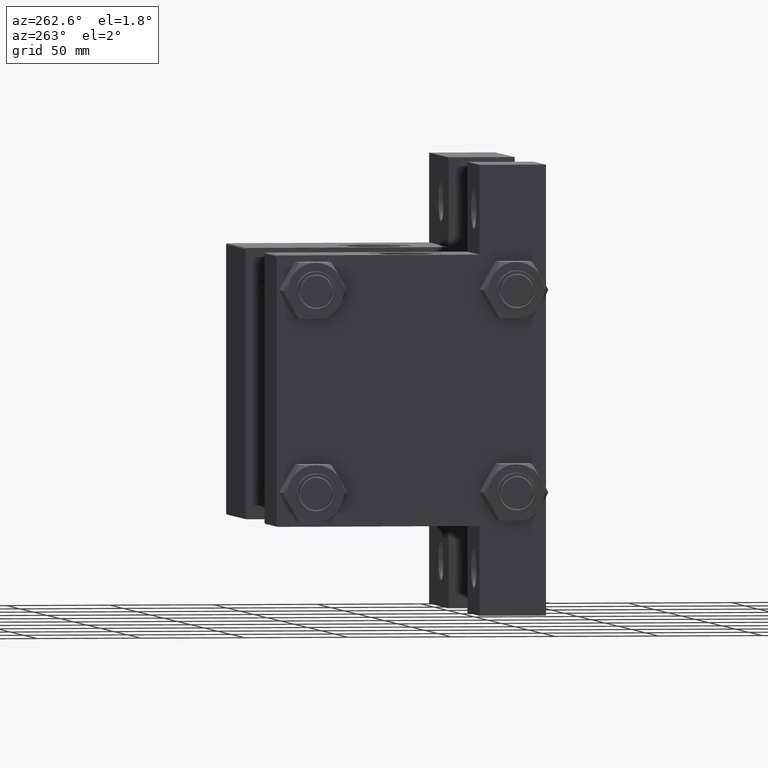
[diagram: clean part render]
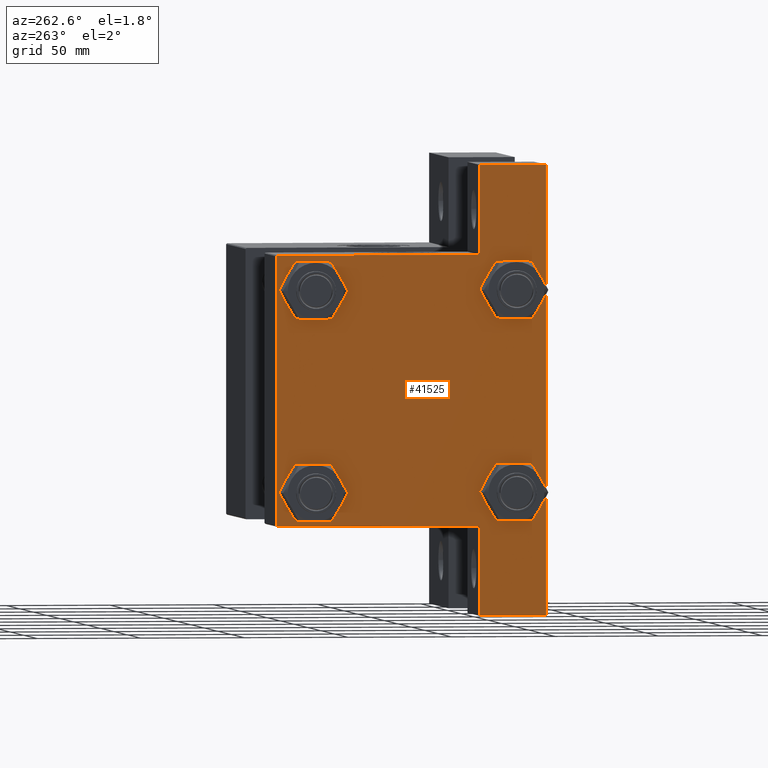
[diagram: same view with one face highlighted and labeled with its STEP entity id]
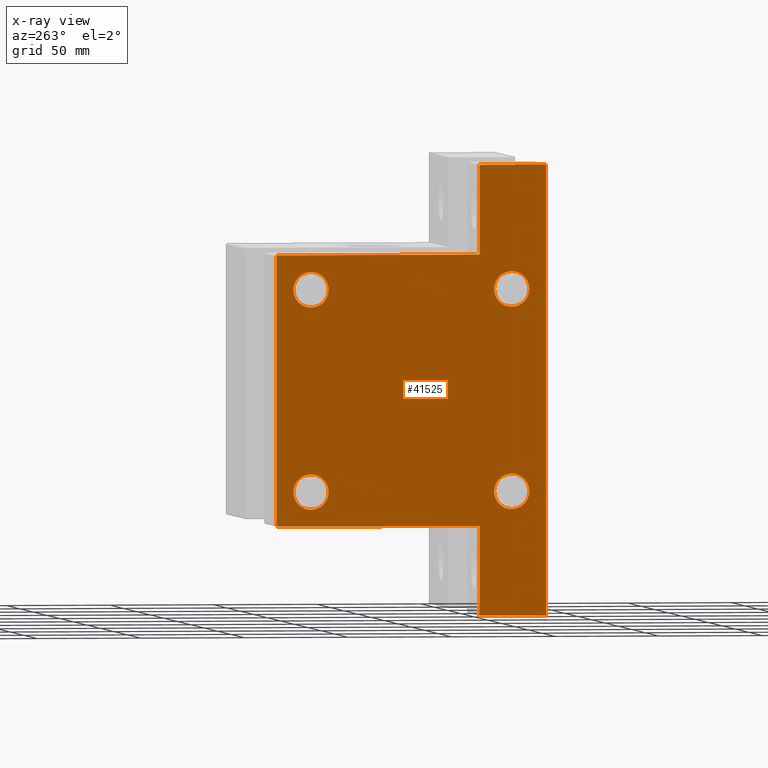
[diagram: x-ray of the same camera — body ghosted, the highlighted face saturated]
A machine part, auxiliary view. The second image highlights one B-rep face of the part: STEP entity #41525.
The next image is the same camera in x-ray: the body ghosted, the highlighted face saturated — about 0% of this face is hidden behind the body in this view.
In plain terms, the highlighted planar face has unit normal (-1, 0, -0).
Its self-contained STEP definition (entity closure, byte-faithful):
#196 = CIRCLE ( 'NONE', #28109, 8.500000000000007105 ) ;
#468 = EDGE_LOOP ( 'NONE', ( #7676, #37481, #26344, #40058, #23330, #5673, #5235, #24926, #45982, #21036 ) ) ;
#1476 = VECTOR ( 'NONE', #44372, 1000.000000000000000 ) ;
#1643 = FACE_OUTER_BOUND ( 'NONE', #468, .T. ) ;
#1759 = DIRECTION ( 'NONE',  ( 0.000000000000000000, 0.000000000000000000, 1.000000000000000000 ) ) ;
#1883 = FACE_BOUND ( 'NONE', #35221, .T. ) ;
#1904 = EDGE_CURVE ( 'NONE', #5141, #34000, #43022, .T. ) ;
#2006 = LINE ( 'NONE', #17020, #24263 ) ;
#2042 = CARTESIAN_POINT ( 'NONE',  ( 0.000000000000000000, -48.44999999999999574, -56.95000000000003837 ) ) ;
#2144 = DIRECTION ( 'NONE',  ( 1.000000000000000000, -0.000000000000000000, 0.000000000000000000 ) ) ;
#2164 = LINE ( 'NONE', #23524, #30502 ) ;
#3273 = CARTESIAN_POINT ( 'NONE',  ( 0.000000000000000000, -65.00000000000000000, 65.00000000000000000 ) ) ;
#3692 = ORIENTED_EDGE ( 'NONE', *, *, #11660, .T. ) ;
#3849 = LINE ( 'NONE', #47142, #35143 ) ;
#4154 = LINE ( 'NONE', #37226, #18875 ) ;
#4224 = CARTESIAN_POINT ( 'NONE',  ( 0.000000000000000000, 48.45000000000000995, -48.45000000000001705 ) ) ;
#4392 = VERTEX_POINT ( 'NONE', #5036 ) ;
#5036 = CARTESIAN_POINT ( 'NONE',  ( -4.696407624884288264E-16, -108.0000000000000000, -33.00000000000000000 ) ) ;
#5141 = VERTEX_POINT ( 'NONE', #12060 ) ;
#5235 = ORIENTED_EDGE ( 'NONE', *, *, #29488, .T. ) ;
#5406 = DIRECTION ( 'NONE',  ( 0.000000000000000000, -1.734723475976806848E-16, -1.000000000000000000 ) ) ;
#5507 = EDGE_CURVE ( 'NONE', #6566, #25371, #11502, .T. ) ;
#5673 = ORIENTED_EDGE ( 'NONE', *, *, #36936, .F. ) ;
#5806 = CARTESIAN_POINT ( 'NONE',  ( 0.000000000000000000, 65.00000000000000000, 65.00000000000001421 ) ) ;
#6016 = DIRECTION ( 'NONE',  ( 0.000000000000000000, 0.000000000000000000, 1.000000000000000000 ) ) ;
#6122 = EDGE_CURVE ( 'NONE', #43606, #47162, #32696, .T. ) ;
#6133 = DIRECTION ( 'NONE',  ( 0.000000000000000000, 0.000000000000000000, 1.000000000000000000 ) ) ;
#6223 = DIRECTION ( 'NONE',  ( -0.000000000000000000, 0.000000000000000000, 1.000000000000000000 ) ) ;
#6387 = DIRECTION ( 'NONE',  ( 0.000000000000000000, 0.000000000000000000, 1.000000000000000000 ) ) ;
#6566 = VERTEX_POINT ( 'NONE', #35928 ) ;
#6775 = ORIENTED_EDGE ( 'NONE', *, *, #19003, .T. ) ;
#6983 = LINE ( 'NONE', #35702, #16815 ) ;
#7057 = CARTESIAN_POINT ( 'NONE',  ( 0.000000000000000000, 48.45000000000000995, 39.95000000000000284 ) ) ;
#7676 = ORIENTED_EDGE ( 'NONE', *, *, #6122, .F. ) ;
#7921 = AXIS2_PLACEMENT_3D ( 'NONE', #18691, #10692, #41107 ) ;
#8433 = CARTESIAN_POINT ( 'NONE',  ( 0.000000000000000000, -64.49999999999997158, 65.00000000000000000 ) ) ;
#8700 = VERTEX_POINT ( 'NONE', #14769 ) ;
#8761 = LINE ( 'NONE', #35297, #40932 ) ;
#9374 = FACE_BOUND ( 'NONE', #44365, .T. ) ;
#9389 = EDGE_CURVE ( 'NONE', #20092, #8700, #24712, .T. ) ;
#10253 = CARTESIAN_POINT ( 'NONE',  ( 0.000000000000000000, -48.44999999999999574, -39.95000000000001705 ) ) ;
#10642 = DIRECTION ( 'NONE',  ( 1.000000000000000000, -0.000000000000000000, 0.000000000000000000 ) ) ;
#10692 = DIRECTION ( 'NONE',  ( 1.000000000000000000, -0.000000000000000000, 0.000000000000000000 ) ) ;
#11248 = DIRECTION ( 'NONE',  ( 0.000000000000000000, 0.000000000000000000, 1.000000000000000000 ) ) ;
#11502 = CIRCLE ( 'NONE', #38727, 8.500000000000007105 ) ;
#11549 = VERTEX_POINT ( 'NONE', #23023 ) ;
#11660 = EDGE_CURVE ( 'NONE', #8700, #20092, #34167, .T. ) ;
#11663 = CIRCLE ( 'NONE', #38894, 8.500000000000007105 ) ;
#12060 = CARTESIAN_POINT ( 'NONE',  ( 0.000000000000000000, 64.49999999999997158, 65.00000000000001421 ) ) ;
#12583 = DIRECTION ( 'NONE',  ( 0.000000000000000000, -1.734723475976806848E-16, -1.000000000000000000 ) ) ;
#12959 = DIRECTION ( 'NONE',  ( 0.000000000000000000, 0.000000000000000000, 1.000000000000000000 ) ) ;
#13619 = VERTEX_POINT ( 'NONE', #7057 ) ;
#13793 = CARTESIAN_POINT ( 'NONE',  ( 1.020153353658907479E-15, -65.00000000000000000, -33.00000000000000000 ) ) ;
#13807 = ORIENTED_EDGE ( 'NONE', *, *, #5507, .T. ) ;
#14383 = EDGE_CURVE ( 'NONE', #11549, #13619, #11663, .T. ) ;
#14476 = VERTEX_POINT ( 'NONE', #2042 ) ;
#14769 = CARTESIAN_POINT ( 'NONE',  ( 0.000000000000000000, -48.44999999999999574, 56.95000000000003837 ) ) ;
#15759 = DIRECTION ( 'NONE',  ( 0.000000000000000000, 0.000000000000000000, -1.000000000000000000 ) ) ;
#16417 = FACE_BOUND ( 'NONE', #31160, .T. ) ;
#16815 = VECTOR ( 'NONE', #28390, 1000.000000000000000 ) ;
#17020 = CARTESIAN_POINT ( 'NONE',  ( 2.598273009909439483E-14, 108.0000000000000426, 29.24146527838174237 ) ) ;
#17201 = DIRECTION ( 'NONE',  ( -0.000000000000000000, 0.7071067811865672237, 0.7071067811865279218 ) ) ;
#17415 = CARTESIAN_POINT ( 'NONE',  ( 2.598273009909439483E-14, 108.0000000000000284, -33.00000000000000000 ) ) ;
#17685 = DIRECTION ( 'NONE',  ( 0.000000000000000000, 0.000000000000000000, 1.000000000000000000 ) ) ;
#18165 = CARTESIAN_POINT ( 'NONE',  ( 0.000000000000000000, -48.44999999999999574, -48.45000000000003126 ) ) ;
#18231 = VERTEX_POINT ( 'NONE', #17415 ) ;
#18691 = CARTESIAN_POINT ( 'NONE',  ( 0.000000000000000000, -48.44999999999999574, -48.45000000000003126 ) ) ;
#18875 = VECTOR ( 'NONE', #15759, 1000.000000000000000 ) ;
#18896 = ORIENTED_EDGE ( 'NONE', *, *, #34493, .T. ) ;
#19003 = EDGE_CURVE ( 'NONE', #14476, #44676, #28908, .T. ) ;
#19239 = EDGE_LOOP ( 'NONE', ( #13807, #18896 ) ) ;
#20092 = VERTEX_POINT ( 'NONE', #25799 ) ;
#20195 = DIRECTION ( 'NONE',  ( 1.000000000000000000, -0.000000000000000000, 0.000000000000000000 ) ) ;
#20466 = LINE ( 'NONE', #27535, #40757 ) ;
#21036 = ORIENTED_EDGE ( 'NONE', *, *, #42936, .F. ) ;
#21047 = CARTESIAN_POINT ( 'NONE',  ( 0.000000000000000000, 65.00000000000000000, -33.00000000000000000 ) ) ;
#21240 = CARTESIAN_POINT ( 'NONE',  ( 2.598273009909439483E-14, 108.0000000000000284, -65.00000000000001421 ) ) ;
#21412 = DIRECTION ( 'NONE',  ( 1.000000000000000000, -0.000000000000000000, 0.000000000000000000 ) ) ;
#22484 = EDGE_CURVE ( 'NONE', #34480, #33309, #4154, .T. ) ;
#23023 = CARTESIAN_POINT ( 'NONE',  ( 0.000000000000000000, 48.45000000000000995, 56.95000000000002416 ) ) ;
#23216 = AXIS2_PLACEMENT_3D ( 'NONE', #24704, #2144, #6016 ) ;
#23330 = ORIENTED_EDGE ( 'NONE', *, *, #22484, .T. ) ;
#23524 = CARTESIAN_POINT ( 'NONE',  ( -4.696407624884288264E-16, -107.9999999999999858, 29.24146527838177079 ) ) ;
#23618 = EDGE_CURVE ( 'NONE', #44676, #14476, #35794, .T. ) ;
#23815 = DIRECTION ( 'NONE',  ( 0.000000000000000000, -1.000000000000000000, -1.067522139062650425E-16 ) ) ;
#23985 = ORIENTED_EDGE ( 'NONE', *, *, #27591, .T. ) ;
#24263 = VECTOR ( 'NONE', #5406, 1000.000000000000000 ) ;
#24704 = CARTESIAN_POINT ( 'NONE',  ( 0.000000000000000000, -48.44999999999999574, 48.45000000000003126 ) ) ;
#24712 = CIRCLE ( 'NONE', #39512, 8.500000000000007105 ) ;
#24926 = ORIENTED_EDGE ( 'NONE', *, *, #42506, .T. ) ;
#25090 = CIRCLE ( 'NONE', #31349, 8.500000000000007105 ) ;
#25246 = ORIENTED_EDGE ( 'NONE', *, *, #14383, .T. ) ;
#25307 = CARTESIAN_POINT ( 'NONE',  ( 0.000000000000000000, -48.44999999999999574, 48.45000000000003126 ) ) ;
#25371 = VERTEX_POINT ( 'NONE', #45314 ) ;
#25799 = CARTESIAN_POINT ( 'NONE',  ( 0.000000000000000000, -48.44999999999999574, 39.95000000000001705 ) ) ;
#26083 = CARTESIAN_POINT ( 'NONE',  ( 0.000000000000000000, 65.00000000000000000, 64.49999999999998579 ) ) ;
#26344 = ORIENTED_EDGE ( 'NONE', *, *, #1904, .F. ) ;
#27535 = CARTESIAN_POINT ( 'NONE',  ( 2.598273009909439798E-14, 108.0000000000000426, -33.00000000000000000 ) ) ;
#27573 = CARTESIAN_POINT ( 'NONE',  ( 0.000000000000000000, 48.45000000000000995, -48.45000000000001705 ) ) ;
#27591 = EDGE_CURVE ( 'NONE', #13619, #11549, #196, .T. ) ;
#27672 = AXIS2_PLACEMENT_3D ( 'NONE', #39561, #31302, #6223 ) ;
#27828 = EDGE_CURVE ( 'NONE', #5141, #34480, #3849, .T. ) ;
#27938 = LINE ( 'NONE', #46430, #45602 ) ;
#28109 = AXIS2_PLACEMENT_3D ( 'NONE', #39198, #20195, #1759 ) ;
#28390 = DIRECTION ( 'NONE',  ( -3.464637479412410313E-17, -1.000000000000000000, 0.000000000000000000 ) ) ;
#28692 = CARTESIAN_POINT ( 'NONE',  ( -4.696407624884288264E-16, -108.0000000000000000, -64.99999999999998579 ) ) ;
#28889 = DIRECTION ( 'NONE',  ( 0.000000000000000000, -1.000000000000000000, -1.067522139062650425E-16 ) ) ;
#28908 = CIRCLE ( 'NONE', #7921, 8.500000000000007105 ) ;
#29488 = EDGE_CURVE ( 'NONE', #18231, #42102, #2006, .T. ) ;
#30502 = VECTOR ( 'NONE', #12583, 1000.000000000000000 ) ;
#31160 = EDGE_LOOP ( 'NONE', ( #3692, #39171 ) ) ;
#31302 = DIRECTION ( 'NONE',  ( -1.000000000000000000, 0.000000000000000000, -0.000000000000000000 ) ) ;
#31349 = AXIS2_PLACEMENT_3D ( 'NONE', #4224, #41911, #11248 ) ;
#31585 = CARTESIAN_POINT ( 'NONE',  ( 0.000000000000000000, -65.00000000000000000, 64.50000000000000000 ) ) ;
#32388 = EDGE_CURVE ( 'NONE', #4392, #42580, #2164, .T. ) ;
#32696 = LINE ( 'NONE', #3273, #1476 ) ;
#33309 = VERTEX_POINT ( 'NONE', #21047 ) ;
#33456 = ORIENTED_EDGE ( 'NONE', *, *, #23618, .T. ) ;
#33956 = VECTOR ( 'NONE', #28889, 1000.000000000000000 ) ;
#34000 = VERTEX_POINT ( 'NONE', #8433 ) ;
#34167 = CIRCLE ( 'NONE', #23216, 8.500000000000007105 ) ;
#34480 = VERTEX_POINT ( 'NONE', #26083 ) ;
#34493 = EDGE_CURVE ( 'NONE', #25371, #6566, #25090, .T. ) ;
#34956 = FACE_BOUND ( 'NONE', #19239, .T. ) ;
#35143 = VECTOR ( 'NONE', #47384, 1000.000000000000114 ) ;
#35144 = DIRECTION ( 'NONE',  ( 1.000000000000000000, -0.000000000000000000, 0.000000000000000000 ) ) ;
#35221 = EDGE_LOOP ( 'NONE', ( #33456, #6775 ) ) ;
#35297 = CARTESIAN_POINT ( 'NONE',  ( 0.000000000000000000, 65.00000000000000000, -64.99999999999998579 ) ) ;
#35702 = CARTESIAN_POINT ( 'NONE',  ( -4.696407624884284320E-16, -107.9999999999999858, -33.00000000000000000 ) ) ;
#35794 = CIRCLE ( 'NONE', #47430, 8.500000000000007105 ) ;
#35928 = CARTESIAN_POINT ( 'NONE',  ( 0.000000000000000000, 48.45000000000000995, -39.95000000000000284 ) ) ;
#36936 = EDGE_CURVE ( 'NONE', #18231, #33309, #20466, .T. ) ;
#37226 = CARTESIAN_POINT ( 'NONE',  ( 0.000000000000000000, 65.00000000000000000, 65.00000000000001421 ) ) ;
#37481 = ORIENTED_EDGE ( 'NONE', *, *, #47213, .T. ) ;
#38727 = AXIS2_PLACEMENT_3D ( 'NONE', #27573, #35144, #12959 ) ;
#38894 = AXIS2_PLACEMENT_3D ( 'NONE', #43375, #43618, #6387 ) ;
#38990 = DIRECTION ( 'NONE',  ( -2.102829850353463349E-16, -1.000000000000000000, 0.000000000000000000 ) ) ;
#39171 = ORIENTED_EDGE ( 'NONE', *, *, #9389, .T. ) ;
#39198 = CARTESIAN_POINT ( 'NONE',  ( 0.000000000000000000, 48.45000000000000995, 48.45000000000001705 ) ) ;
#39512 = AXIS2_PLACEMENT_3D ( 'NONE', #25307, #21412, #6133 ) ;
#39561 = CARTESIAN_POINT ( 'NONE',  ( 0.000000000000000000, 0.000000000000000000, 0.000000000000000000 ) ) ;
#40058 = ORIENTED_EDGE ( 'NONE', *, *, #27828, .T. ) ;
#40757 = VECTOR ( 'NONE', #38990, 1000.000000000000000 ) ;
#40932 = VECTOR ( 'NONE', #23815, 1000.000000000000000 ) ;
#41107 = DIRECTION ( 'NONE',  ( 0.000000000000000000, 0.000000000000000000, 1.000000000000000000 ) ) ;
#41525 = ADVANCED_FACE ( 'NONE', ( #16417, #1883, #34956, #9374, #1643 ), #42736, .T. ) ;
#41911 = DIRECTION ( 'NONE',  ( 1.000000000000000000, -0.000000000000000000, 0.000000000000000000 ) ) ;
#42102 = VERTEX_POINT ( 'NONE', #21240 ) ;
#42506 = EDGE_CURVE ( 'NONE', #42102, #42580, #8761, .T. ) ;
#42580 = VERTEX_POINT ( 'NONE', #28692 ) ;
#42736 = PLANE ( 'NONE',  #27672 ) ;
#42936 = EDGE_CURVE ( 'NONE', #47162, #4392, #6983, .T. ) ;
#43022 = LINE ( 'NONE', #5806, #33956 ) ;
#43375 = CARTESIAN_POINT ( 'NONE',  ( 0.000000000000000000, 48.45000000000000995, 48.45000000000001705 ) ) ;
#43606 = VERTEX_POINT ( 'NONE', #31585 ) ;
#43618 = DIRECTION ( 'NONE',  ( 1.000000000000000000, -0.000000000000000000, 0.000000000000000000 ) ) ;
#44365 = EDGE_LOOP ( 'NONE', ( #25246, #23985 ) ) ;
#44372 = DIRECTION ( 'NONE',  ( 0.000000000000000000, 0.000000000000000000, -1.000000000000000000 ) ) ;
#44676 = VERTEX_POINT ( 'NONE', #10253 ) ;
#45314 = CARTESIAN_POINT ( 'NONE',  ( 0.000000000000000000, 48.45000000000000995, -56.95000000000002416 ) ) ;
#45602 = VECTOR ( 'NONE', #17201, 1000.000000000000000 ) ;
#45982 = ORIENTED_EDGE ( 'NONE', *, *, #32388, .F. ) ;
#46430 = CARTESIAN_POINT ( 'NONE',  ( -0.000000000000000000, -64.74999999999819522, 64.75000000000179057 ) ) ;
#47142 = CARTESIAN_POINT ( 'NONE',  ( 0.000000000000000000, 64.74999999999998579, 64.74999999999998579 ) ) ;
#47162 = VERTEX_POINT ( 'NONE', #13793 ) ;
#47213 = EDGE_CURVE ( 'NONE', #43606, #34000, #27938, .T. ) ;
#47384 = DIRECTION ( 'NONE',  ( 0.000000000000000000, 0.7071067811865474617, -0.7071067811865474617 ) ) ;
#47430 = AXIS2_PLACEMENT_3D ( 'NONE', #18165, #10642, #17685 ) ;